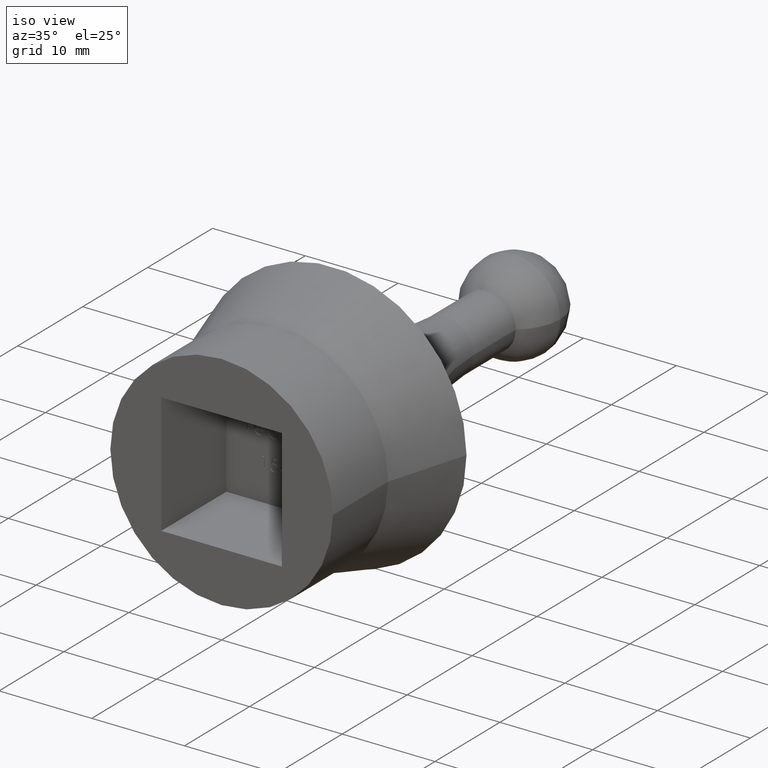
[diagram: clean part render]
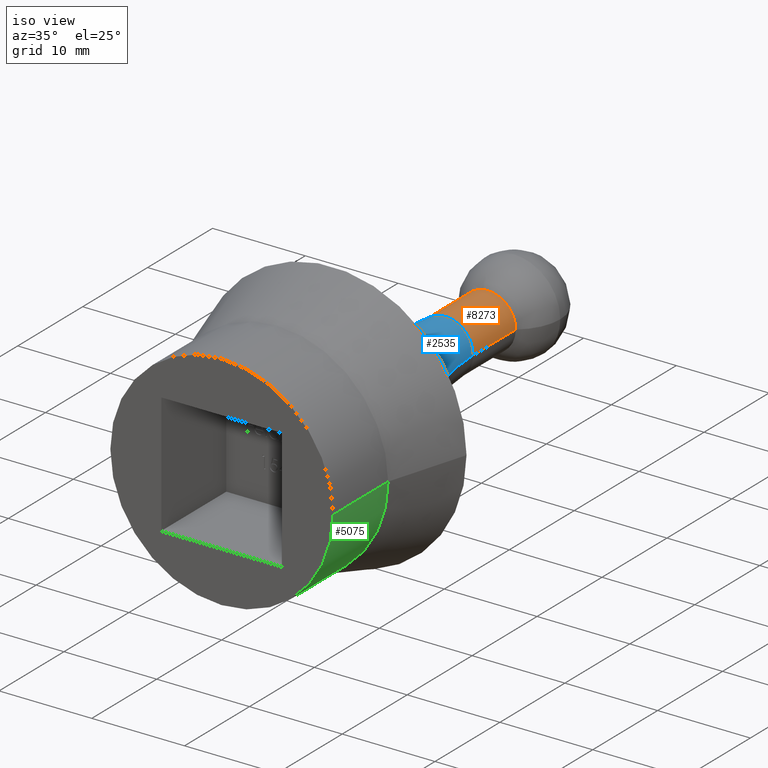
[diagram: same view with three faces highlighted in distinct colors, each labeled with its STEP entity id]
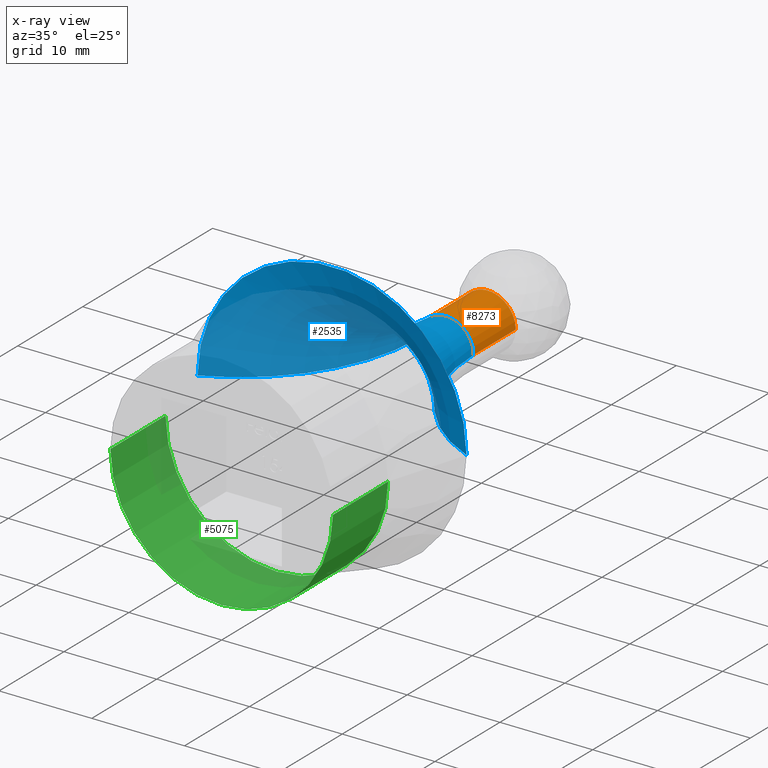
[diagram: x-ray of the same camera — body ghosted, the three highlighted faces saturated]
A machine part, iso view with three faces highlighted in distinct colors.
The next image is the same camera in x-ray (body ghosted, the three faces saturated) — at least one of them is partly hidden behind the body in this view.
Their STEP definitions:

[orange] entity #8273 — the highlighted cylindrical surface (edge-blend (fillet) strip) has radius 3 mm, axis along (-0, -1, -0).
#85 = AXIS2_PLACEMENT_3D ( 'NONE', #10567, #9614, #4463 ) ;
#711 = CARTESIAN_POINT ( 'NONE',  ( 2.510525938252076651E-16, 41.00000000000003553, 0.000000000000000000 ) ) ;
#1013 = EDGE_CURVE ( 'NONE', #9980, #8603, #3188, .T. ) ;
#1330 = VECTOR ( 'NONE', #8123, 1000.000000000000000 ) ;
#1626 = CYLINDRICAL_SURFACE ( 'NONE', #85, 3.000000000000002665 ) ;
#1650 = EDGE_CURVE ( 'NONE', #5108, #9980, #6316, .T. ) ;
#1963 = ORIENTED_EDGE ( 'NONE', *, *, #1013, .T. ) ;
#2154 = ORIENTED_EDGE ( 'NONE', *, *, #8585, .F. ) ;
#2233 = EDGE_LOOP ( 'NONE', ( #10299, #1963, #9838, #2154 ) ) ;
#2484 = AXIS2_PLACEMENT_3D ( 'NONE', #711, #10313, #5127 ) ;
#2743 = DIRECTION ( 'NONE',  ( 1.000000000000000000, 0.000000000000000000, 0.000000000000000000 ) ) ;
#2778 = AXIS2_PLACEMENT_3D ( 'NONE', #6256, #7988, #2743 ) ;
#3188 = LINE ( 'NONE', #7284, #4849 ) ;
#4463 = DIRECTION ( 'NONE',  ( 1.000000000000000000, -6.123233995736765574E-18, 0.000000000000000000 ) ) ;
#4753 = DIRECTION ( 'NONE',  ( -6.123233995736766344E-18, -1.000000000000000000, -0.000000000000000000 ) ) ;
#4849 = VECTOR ( 'NONE', #4753, 1000.000000000000000 ) ;
#5108 = VERTEX_POINT ( 'NONE', #9497 ) ;
#5112 = EDGE_CURVE ( 'NONE', #11249, #8603, #9587, .T. ) ;
#5127 = DIRECTION ( 'NONE',  ( 1.000000000000000000, 0.000000000000000000, 0.000000000000000000 ) ) ;
#5205 = FACE_OUTER_BOUND ( 'NONE', #2233, .T. ) ;
#5564 = CARTESIAN_POINT ( 'NONE',  ( -3.000000000000002665, 34.45709025009610116, 1.071565949253933138E-15 ) ) ;
#6256 = CARTESIAN_POINT ( 'NONE',  ( 2.109888264135583202E-16, 34.45709025009610116, 0.000000000000000000 ) ) ;
#6316 = CIRCLE ( 'NONE', #2484, 3.000000000000002220 ) ;
#6385 = CARTESIAN_POINT ( 'NONE',  ( 3.000000000000002665, -1.836970198721031290E-17, 0.000000000000000000 ) ) ;
#7284 = CARTESIAN_POINT ( 'NONE',  ( -3.000000000000002665, 1.836970198721031290E-17, 3.673940397442062826E-16 ) ) ;
#7586 = CARTESIAN_POINT ( 'NONE',  ( 3.000000000000002665, 34.45709025009610116, 0.000000000000000000 ) ) ;
#7988 = DIRECTION ( 'NONE',  ( -6.123233995736766344E-18, -1.000000000000000000, -0.000000000000000000 ) ) ;
#8123 = DIRECTION ( 'NONE',  ( -6.123233995736766344E-18, -1.000000000000000000, -0.000000000000000000 ) ) ;
#8273 = ADVANCED_FACE ( 'NONE', ( #5205 ), #1626, .T. ) ;
#8585 = EDGE_CURVE ( 'NONE', #5108, #11249, #11044, .T. ) ;
#8603 = VERTEX_POINT ( 'NONE', #5564 ) ;
#9497 = CARTESIAN_POINT ( 'NONE',  ( 3.000000000000002665, 41.00000000000003553, 0.000000000000000000 ) ) ;
#9587 = CIRCLE ( 'NONE', #2778, 3.000000000000002665 ) ;
#9614 = DIRECTION ( 'NONE',  ( -6.123233995736766344E-18, -1.000000000000000000, -0.000000000000000000 ) ) ;
#9838 = ORIENTED_EDGE ( 'NONE', *, *, #5112, .F. ) ;
#9980 = VERTEX_POINT ( 'NONE', #10963 ) ;
#10299 = ORIENTED_EDGE ( 'NONE', *, *, #1650, .T. ) ;
#10313 = DIRECTION ( 'NONE',  ( -6.123233995736766344E-18, -1.000000000000000000, -0.000000000000000000 ) ) ;
#10567 = CARTESIAN_POINT ( 'NONE',  ( 0.000000000000000000, 0.000000000000000000, 0.000000000000000000 ) ) ;
#10963 = CARTESIAN_POINT ( 'NONE',  ( -3.000000000000001776, 41.00000000000003553, 3.673940397442062826E-16 ) ) ;
#11044 = LINE ( 'NONE', #6385, #1330 ) ;
#11249 = VERTEX_POINT ( 'NONE', #7586 ) ;

[blue] entity #2535 — the highlighted toroidal blend (fillet) surface has major radius 22 mm and minor (blend) radius 19 mm.
#145 = ORIENTED_EDGE ( 'NONE', *, *, #860, .F. ) ;
#558 = DIRECTION ( 'NONE',  ( 1.000000000000000000, 0.000000000000000000, -1.224646799147353207E-16 ) ) ;
#860 = EDGE_CURVE ( 'NONE', #9259, #4113, #10699, .T. ) ;
#1477 = CARTESIAN_POINT ( 'NONE',  ( 14.49999999999998757, 17.00000000000001421, 0.000000000000000000 ) ) ;
#1643 = CARTESIAN_POINT ( 'NONE',  ( 22.00000000000000355, 34.45709025009610116, 0.000000000000000000 ) ) ;
#1751 = EDGE_LOOP ( 'NONE', ( #9518, #145, #6593, #5266 ) ) ;
#1798 = DIRECTION ( 'NONE',  ( 1.000000000000000000, -6.123233995736765574E-18, 0.000000000000000000 ) ) ;
#2316 = AXIS2_PLACEMENT_3D ( 'NONE', #7098, #5413, #9647 ) ;
#2535 = ADVANCED_FACE ( 'NONE', ( #4427 ), #9845, .F. ) ;
#2743 = DIRECTION ( 'NONE',  ( 1.000000000000000000, 0.000000000000000000, 0.000000000000000000 ) ) ;
#2778 = AXIS2_PLACEMENT_3D ( 'NONE', #6256, #7988, #2743 ) ;
#3335 = CIRCLE ( 'NONE', #8417, 19.00000000000000000 ) ;
#3520 = CARTESIAN_POINT ( 'NONE',  ( -14.49999999999998757, 17.00000000000001421, 1.775737858763660437E-15 ) ) ;
#3948 = CIRCLE ( 'NONE', #4967, 19.00000000000000000 ) ;
#4113 = VERTEX_POINT ( 'NONE', #3520 ) ;
#4179 = EDGE_CURVE ( 'NONE', #4113, #8603, #3335, .T. ) ;
#4427 = FACE_OUTER_BOUND ( 'NONE', #1751, .T. ) ;
#4967 = AXIS2_PLACEMENT_3D ( 'NONE', #1643, #8566, #5942 ) ;
#5112 = EDGE_CURVE ( 'NONE', #11249, #8603, #9587, .T. ) ;
#5266 = ORIENTED_EDGE ( 'NONE', *, *, #5112, .T. ) ;
#5413 = DIRECTION ( 'NONE',  ( -6.123233995736766344E-18, -1.000000000000000000, -0.000000000000000000 ) ) ;
#5564 = CARTESIAN_POINT ( 'NONE',  ( -3.000000000000002665, 34.45709025009610116, 1.071565949253933138E-15 ) ) ;
#5942 = DIRECTION ( 'NONE',  ( -1.000000000000000000, 0.000000000000000000, 0.000000000000000000 ) ) ;
#6197 = DIRECTION ( 'NONE',  ( -6.123233995736766344E-18, -1.000000000000000000, -0.000000000000000000 ) ) ;
#6256 = CARTESIAN_POINT ( 'NONE',  ( 2.109888264135583202E-16, 34.45709025009610116, 0.000000000000000000 ) ) ;
#6593 = ORIENTED_EDGE ( 'NONE', *, *, #8865, .T. ) ;
#7030 = CARTESIAN_POINT ( 'NONE',  ( 0.000000000000000000, 34.45709025009610116, 0.000000000000000000 ) ) ;
#7098 = CARTESIAN_POINT ( 'NONE',  ( 1.040949779275251126E-16, 17.00000000000001421, 0.000000000000000000 ) ) ;
#7586 = CARTESIAN_POINT ( 'NONE',  ( 3.000000000000002665, 34.45709025009610116, 0.000000000000000000 ) ) ;
#7614 = CARTESIAN_POINT ( 'NONE',  ( -22.00000000000000355, 34.45709025009610116, 2.694222958124177204E-15 ) ) ;
#7988 = DIRECTION ( 'NONE',  ( -6.123233995736766344E-18, -1.000000000000000000, -0.000000000000000000 ) ) ;
#8417 = AXIS2_PLACEMENT_3D ( 'NONE', #7614, #11127, #558 ) ;
#8566 = DIRECTION ( 'NONE',  ( 0.000000000000000000, 0.000000000000000000, -1.000000000000000000 ) ) ;
#8603 = VERTEX_POINT ( 'NONE', #5564 ) ;
#8865 = EDGE_CURVE ( 'NONE', #9259, #11249, #3948, .T. ) ;
#9259 = VERTEX_POINT ( 'NONE', #1477 ) ;
#9518 = ORIENTED_EDGE ( 'NONE', *, *, #4179, .F. ) ;
#9587 = CIRCLE ( 'NONE', #2778, 3.000000000000002665 ) ;
#9647 = DIRECTION ( 'NONE',  ( 1.000000000000000000, 0.000000000000000000, 0.000000000000000000 ) ) ;
#9845 = TOROIDAL_SURFACE ( 'NONE', #10063, 22.00000000000000355, 19.00000000000000000 ) ;
#10063 = AXIS2_PLACEMENT_3D ( 'NONE', #7030, #6197, #1798 ) ;
#10699 = CIRCLE ( 'NONE', #2316, 14.49999999999998579 ) ;
#11127 = DIRECTION ( 'NONE',  ( 1.224646799147353207E-16, -7.498798913309288894E-34, 1.000000000000000000 ) ) ;
#11249 = VERTEX_POINT ( 'NONE', #7586 ) ;

[green] entity #5075 — the highlighted cylindrical surface (partial cylindrical patch) has radius 12 mm, axis along (-0, -1, -0).
#793 = VERTEX_POINT ( 'NONE', #7690 ) ;
#991 = LINE ( 'NONE', #5079, #2349 ) ;
#1304 = DIRECTION ( 'NONE',  ( 1.000000000000000000, -6.123233995736765574E-18, 0.000000000000000000 ) ) ;
#1331 = VERTEX_POINT ( 'NONE', #5207 ) ;
#1652 = CIRCLE ( 'NONE', #8233, 12.00000000000001066 ) ;
#1725 = EDGE_CURVE ( 'NONE', #1331, #2243, #991, .T. ) ;
#2026 = DIRECTION ( 'NONE',  ( -6.123233995736766344E-18, -1.000000000000000000, -0.000000000000000000 ) ) ;
#2243 = VERTEX_POINT ( 'NONE', #4815 ) ;
#2253 = CARTESIAN_POINT ( 'NONE',  ( 12.00000000000001066, 8.500000000000035527, 0.000000000000000000 ) ) ;
#2330 = VERTEX_POINT ( 'NONE', #2253 ) ;
#2349 = VECTOR ( 'NONE', #10274, 1000.000000000000000 ) ;
#2523 = CARTESIAN_POINT ( 'NONE',  ( 0.000000000000000000, 0.000000000000000000, 0.000000000000000000 ) ) ;
#2657 = DIRECTION ( 'NONE',  ( 1.000000000000000000, 0.000000000000000000, 0.000000000000000000 ) ) ;
#2687 = DIRECTION ( 'NONE',  ( -6.123233995736766344E-18, -1.000000000000000000, -0.000000000000000000 ) ) ;
#3029 = ORIENTED_EDGE ( 'NONE', *, *, #9595, .F. ) ;
#3407 = DIRECTION ( 'NONE',  ( 1.000000000000000000, -6.123233995736765574E-18, 0.000000000000000000 ) ) ;
#3764 = CARTESIAN_POINT ( 'NONE',  ( 12.00000000000001066, -7.347880794884125159E-17, 0.000000000000000000 ) ) ;
#3966 = ORIENTED_EDGE ( 'NONE', *, *, #9896, .T. ) ;
#4133 = ORIENTED_EDGE ( 'NONE', *, *, #8698, .T. ) ;
#4440 = CARTESIAN_POINT ( 'NONE',  ( 5.204748896376272886E-17, 8.500000000000035527, 0.000000000000000000 ) ) ;
#4515 = LINE ( 'NONE', #3764, #9000 ) ;
#4815 = CARTESIAN_POINT ( 'NONE',  ( -12.00000000000001066, 1.469576158976825032E-16, 1.469576158976825131E-15 ) ) ;
#5075 = ADVANCED_FACE ( 'NONE', ( #9463 ), #5126, .T. ) ;
#5079 = CARTESIAN_POINT ( 'NONE',  ( -12.00000000000001066, 7.347880794884125159E-17, 1.469576158976825131E-15 ) ) ;
#5126 = CYLINDRICAL_SURFACE ( 'NONE', #8995, 12.00000000000001066 ) ;
#5207 = CARTESIAN_POINT ( 'NONE',  ( -12.00000000000001066, 8.500000000000035527, 1.469576158976825131E-15 ) ) ;
#5685 = AXIS2_PLACEMENT_3D ( 'NONE', #10076, #9141, #1304 ) ;
#7227 = EDGE_LOOP ( 'NONE', ( #9703, #3966, #4133, #3029 ) ) ;
#7690 = CARTESIAN_POINT ( 'NONE',  ( 12.00000000000001066, 0.000000000000000000, 0.000000000000000000 ) ) ;
#8085 = CIRCLE ( 'NONE', #5685, 12.00000000000001066 ) ;
#8233 = AXIS2_PLACEMENT_3D ( 'NONE', #4440, #2687, #2657 ) ;
#8636 = DIRECTION ( 'NONE',  ( -6.123233995736766344E-18, -1.000000000000000000, -0.000000000000000000 ) ) ;
#8698 = EDGE_CURVE ( 'NONE', #2330, #793, #4515, .T. ) ;
#8995 = AXIS2_PLACEMENT_3D ( 'NONE', #2523, #8636, #3407 ) ;
#9000 = VECTOR ( 'NONE', #2026, 1000.000000000000000 ) ;
#9141 = DIRECTION ( 'NONE',  ( -6.123233995736766344E-18, -1.000000000000000000, -0.000000000000000000 ) ) ;
#9463 = FACE_OUTER_BOUND ( 'NONE', #7227, .T. ) ;
#9595 = EDGE_CURVE ( 'NONE', #2243, #793, #8085, .T. ) ;
#9703 = ORIENTED_EDGE ( 'NONE', *, *, #1725, .F. ) ;
#9896 = EDGE_CURVE ( 'NONE', #1331, #2330, #1652, .T. ) ;
#10076 = CARTESIAN_POINT ( 'NONE',  ( 4.499279347985576587E-34, 7.347880794884125159E-17, 0.000000000000000000 ) ) ;
#10274 = DIRECTION ( 'NONE',  ( -6.123233995736766344E-18, -1.000000000000000000, -0.000000000000000000 ) ) ;